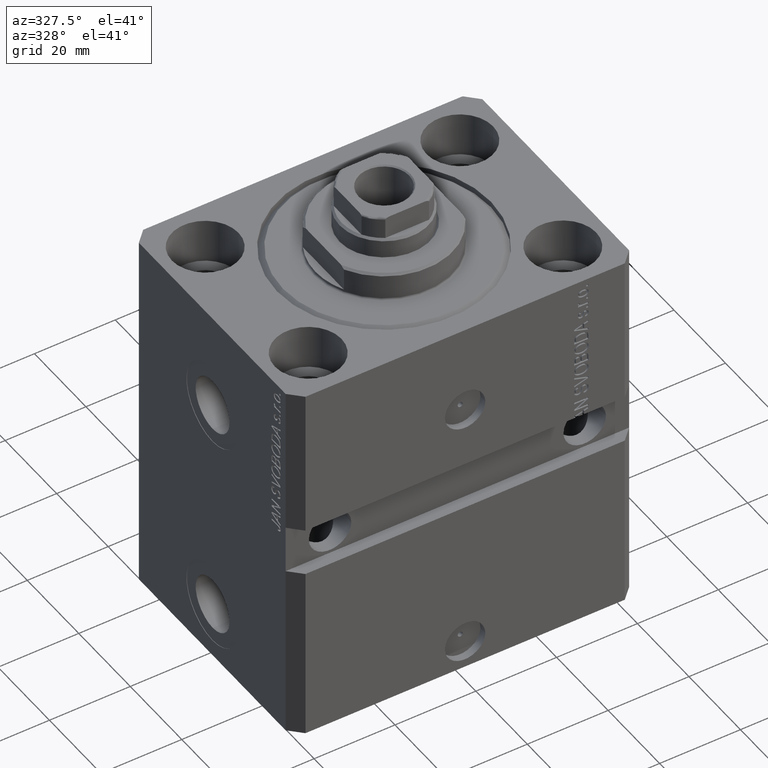
[diagram: clean part render]
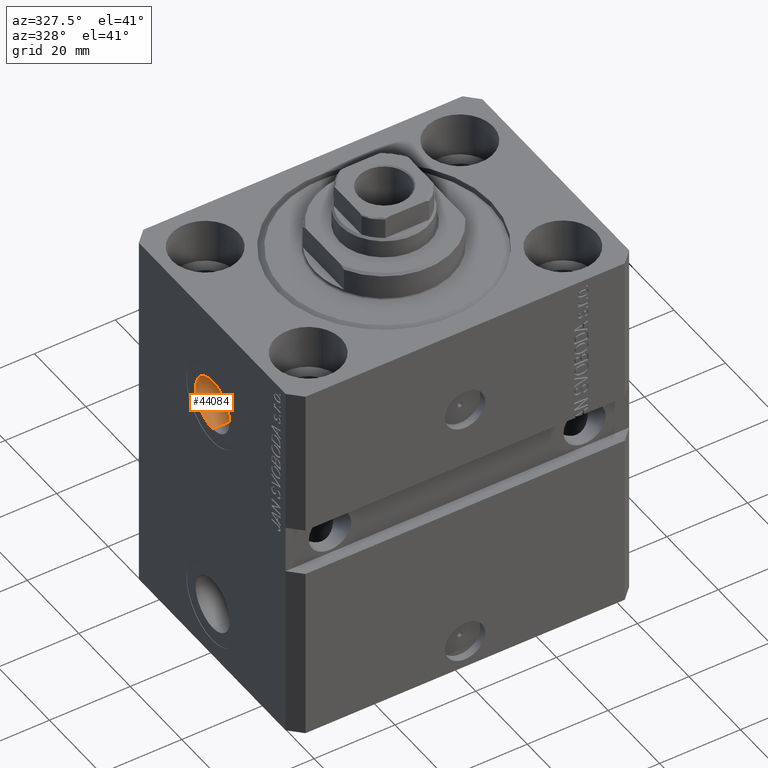
[diagram: same view with one face highlighted and labeled with its STEP entity id]
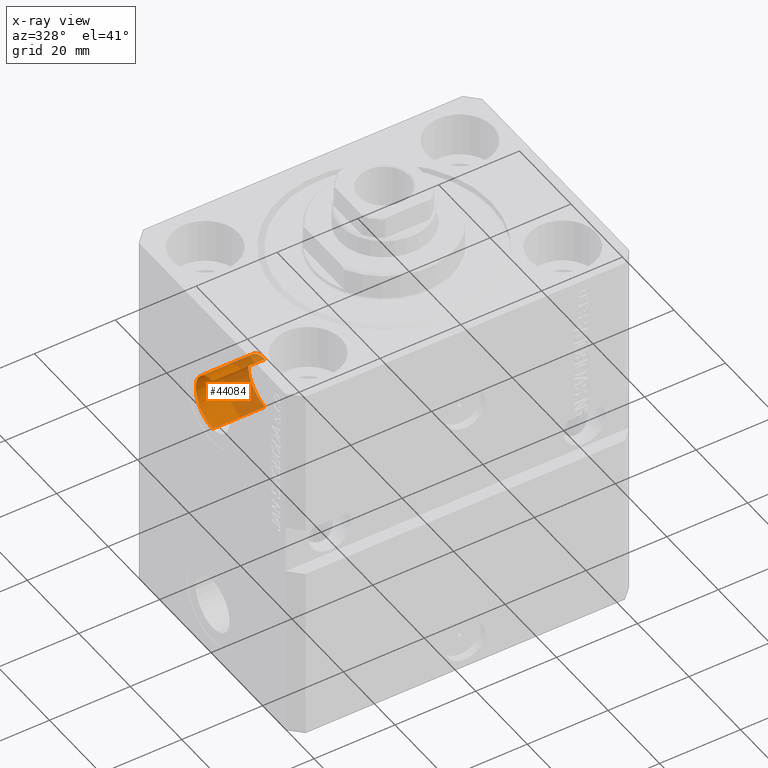
[diagram: x-ray of the same camera — body ghosted, the highlighted face saturated]
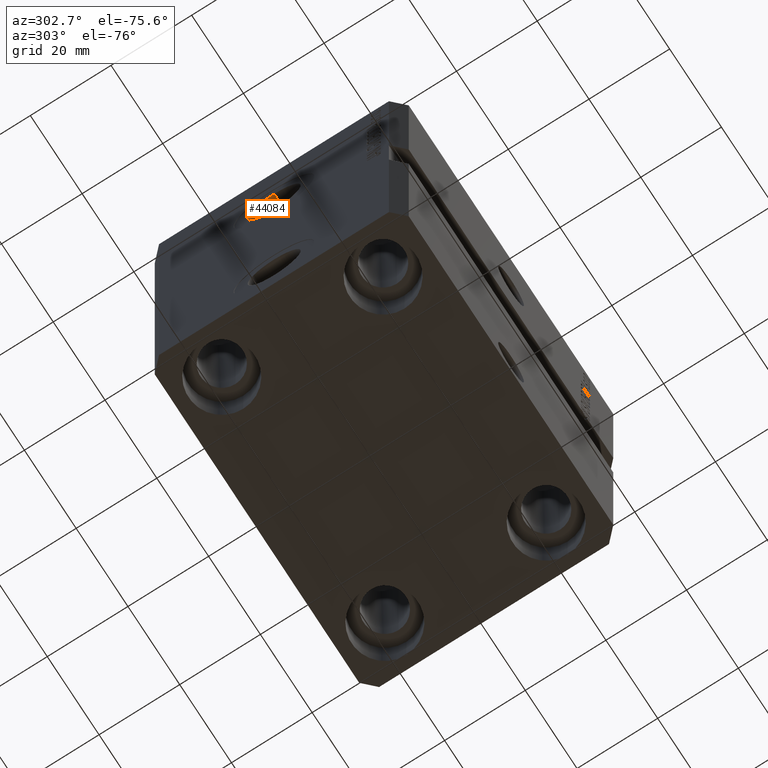
[diagram: same view with one face highlighted and labeled with its STEP entity id]
A machine part, auxiliary view. The second image highlights one B-rep face of the part: STEP entity #44084.
The next image is the same camera in x-ray: the body ghosted, the highlighted face saturated — about 45% of this face is hidden behind the body in this view.
A second angle (auxiliary view) of the same face is appended — the face is thin or edge-on in the first view.
In plain terms, the highlighted cylindrical surface (edge-blend (fillet) strip) has radius 6.58 mm, axis along (-1, -0, -0).
Its self-contained STEP definition (entity closure, byte-faithful):
#2857 = ORIENTED_EDGE ( 'NONE', *, *, #31182, .T. ) ;
#3050 = VERTEX_POINT ( 'NONE', #33066 ) ;
#5013 = LINE ( 'NONE', #35999, #30888 ) ;
#6441 = CARTESIAN_POINT ( 'NONE',  ( -29.40000000000000213, -3.469446951953614189E-15, -24.00000000000000000 ) ) ;
#7279 = CARTESIAN_POINT ( 'NONE',  ( -29.40000000000000213, -2.663629358114655936E-15, -30.57999999999999829 ) ) ;
#8041 = VERTEX_POINT ( 'NONE', #10536 ) ;
#8055 = CARTESIAN_POINT ( 'NONE',  ( -29.40000000000000213, -3.469446951953614189E-15, -24.00000000000000000 ) ) ;
#8660 = VECTOR ( 'NONE', #21277, 1000.000000000000000 ) ;
#8869 = CARTESIAN_POINT ( 'NONE',  ( -42.39999999999999858, -3.469446951953614189E-15, -17.42000000000000171 ) ) ;
#8975 = DIRECTION ( 'NONE',  ( 0.000000000000000000, 0.000000000000000000, 1.000000000000000000 ) ) ;
#9019 = EDGE_CURVE ( 'NONE', #3050, #21176, #39964, .T. ) ;
#10131 = DIRECTION ( 'NONE',  ( -1.000000000000000000, -0.000000000000000000, -0.000000000000000000 ) ) ;
#10536 = CARTESIAN_POINT ( 'NONE',  ( -42.39999999999999858, -2.663629358114655936E-15, -30.57999999999999829 ) ) ;
#12118 = AXIS2_PLACEMENT_3D ( 'NONE', #8055, #36730, #8975 ) ;
#12244 = AXIS2_PLACEMENT_3D ( 'NONE', #42008, #31038, #34476 ) ;
#13234 = EDGE_CURVE ( 'NONE', #17360, #8041, #39302, .T. ) ;
#13575 = FACE_OUTER_BOUND ( 'NONE', #30634, .T. ) ;
#15848 = EDGE_CURVE ( 'NONE', #21176, #8041, #24724, .T. ) ;
#17360 = VERTEX_POINT ( 'NONE', #8869 ) ;
#18608 = ORIENTED_EDGE ( 'NONE', *, *, #9019, .F. ) ;
#21176 = VERTEX_POINT ( 'NONE', #37520 ) ;
#21277 = DIRECTION ( 'NONE',  ( -1.000000000000000000, -0.000000000000000000, -0.000000000000000000 ) ) ;
#22661 = ORIENTED_EDGE ( 'NONE', *, *, #13234, .T. ) ;
#24724 = LINE ( 'NONE', #7279, #8660 ) ;
#25689 = ORIENTED_EDGE ( 'NONE', *, *, #15848, .F. ) ;
#30634 = EDGE_LOOP ( 'NONE', ( #25689, #18608, #2857, #22661 ) ) ;
#30888 = VECTOR ( 'NONE', #36895, 1000.000000000000000 ) ;
#31038 = DIRECTION ( 'NONE',  ( -1.000000000000000000, 0.000000000000000000, 0.000000000000000000 ) ) ;
#31182 = EDGE_CURVE ( 'NONE', #3050, #17360, #5013, .T. ) ;
#31676 = DIRECTION ( 'NONE',  ( 0.000000000000000000, 0.000000000000000000, 1.000000000000000000 ) ) ;
#33066 = CARTESIAN_POINT ( 'NONE',  ( -29.40000000000000213, -3.469446951953614189E-15, -17.42000000000000171 ) ) ;
#34476 = DIRECTION ( 'NONE',  ( 0.000000000000000000, 0.000000000000000000, 1.000000000000000000 ) ) ;
#35999 = CARTESIAN_POINT ( 'NONE',  ( -29.40000000000000213, -3.469446951953614189E-15, -17.42000000000000171 ) ) ;
#36730 = DIRECTION ( 'NONE',  ( -1.000000000000000000, 0.000000000000000000, 0.000000000000000000 ) ) ;
#36895 = DIRECTION ( 'NONE',  ( -1.000000000000000000, -0.000000000000000000, -0.000000000000000000 ) ) ;
#37520 = CARTESIAN_POINT ( 'NONE',  ( -29.40000000000000213, -2.663629358114655936E-15, -30.57999999999999829 ) ) ;
#38421 = AXIS2_PLACEMENT_3D ( 'NONE', #6441, #10131, #31676 ) ;
#39302 = CIRCLE ( 'NONE', #12244, 6.579999999999999183 ) ;
#39964 = CIRCLE ( 'NONE', #12118, 6.579999999999999183 ) ;
#41536 = CYLINDRICAL_SURFACE ( 'NONE', #38421, 6.579999999999999183 ) ;
#42008 = CARTESIAN_POINT ( 'NONE',  ( -42.39999999999999858, -3.469446951953614189E-15, -24.00000000000000000 ) ) ;
#44084 = ADVANCED_FACE ( 'NONE', ( #13575 ), #41536, .F. ) ;